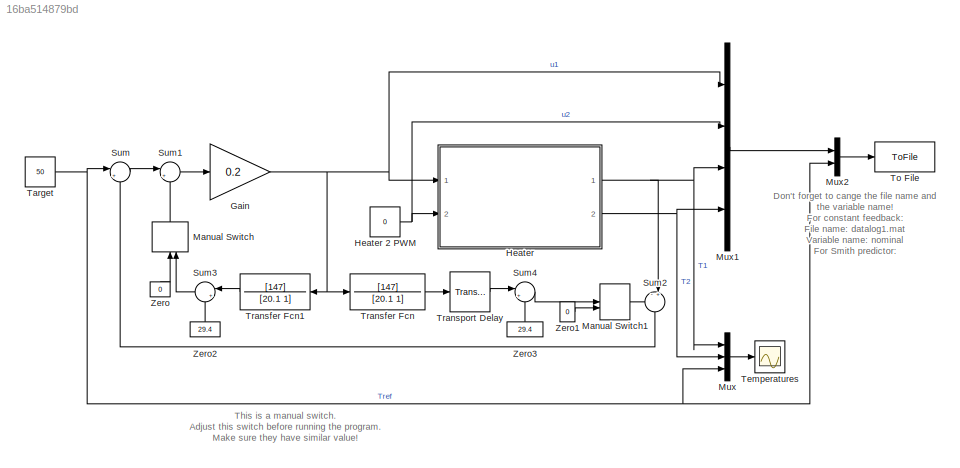
MODEL slx_16ba514879bd
KIND model
CONFIG AbsTol = auto
CONFIG EnableMultiTasking = on
CONFIG FixedStep = 1e-3
CONFIG MaxStep = auto
CONFIG MinStep = auto
CONFIG RelTol = 1e-3
CONFIG SampleTimeConstraint = Unconstrained
CONFIG SolverName = ode2
CONFIG StartTime = 0.0
CONFIG StopTime = inf
BLOCK [Gain] Gain
  Gain = 0.2
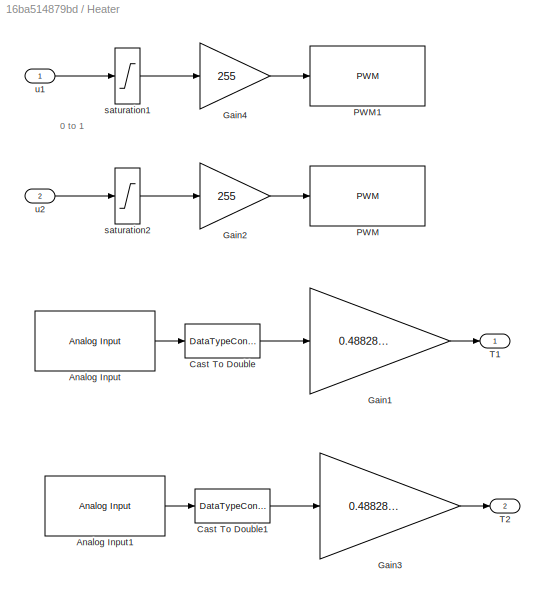
BLOCK [SubSystem] Heater
  Ports = [2, 2]
  RequestExecContextInheritance = off
BLOCK [Constant] Heater 2 PWM
  Value = 0
BLOCK [Reference] Heater/Analog Input  REF=arduinolib/Analog Input
  Ports = [0, 1]
  SourceBlock = arduinolib/Analog Input
  SourceProductBaseCode = ARDUINO
  SourceType = Arduino Analog Input
BLOCK [Reference] Heater/Analog Input1  REF=arduinolib/Analog Input
  Ports = [0, 1]
  SourceBlock = arduinolib/Analog Input
  SourceProductBaseCode = ARDUINO
  SourceType = Arduino Analog Input
BLOCK [DataTypeConversion] Heater/Cast To Double
  OutDataTypeStr = double
  RndMeth = Floor
  SaturateOnIntegerOverflow = off
BLOCK [DataTypeConversion] Heater/Cast To Double1
  OutDataTypeStr = double
  RndMeth = Floor
  SaturateOnIntegerOverflow = off
BLOCK [Gain] Heater/Gain1
  Gain = 0.48828125
BLOCK [Gain] Heater/Gain2
  Gain = 255
BLOCK [Gain] Heater/Gain3
  Gain = 0.48828125
BLOCK [Gain] Heater/Gain4
  Gain = 255
BLOCK [Reference] Heater/PWM  REF=arduinolib/PWM
  Ports = [1]
  SourceBlock = arduinolib/PWM
  SourceProductBaseCode = ARDUINO
  SourceType = Arduino PWM
BLOCK [Reference] Heater/PWM1  REF=arduinolib/PWM
  Ports = [1]
  SourceBlock = arduinolib/PWM
  SourceProductBaseCode = ARDUINO
  SourceType = Arduino PWM
BLOCK [Outport] Heater/T1
  VectorParamsAs1DForOutWhenUnconnected = off
BLOCK [Outport] Heater/T2
  Port = 2
  VectorParamsAs1DForOutWhenUnconnected = off
BLOCK [Saturate] Heater/saturation1
  LowerLimit = 0
  UpperLimit = 1
BLOCK [Saturate] Heater/saturation2
  LowerLimit = 0
  UpperLimit = 1
BLOCK [Inport] Heater/u1
BLOCK [Inport] Heater/u2
  Port = 2
BLOCK [ManualSwitch] Manual Switch
  CurrentSetting = 0
  NameLocation = right
BLOCK [ManualSwitch] Manual Switch1
BLOCK [Mux] Mux
  DisplayOption = bar
  Inputs = 3
  Ports = [3, 1]
BLOCK [Mux] Mux1
  DisplayOption = bar
  Ports = [4, 1]
BLOCK [Mux] Mux2
  DisplayOption = bar
  Inputs = 2
  Ports = [2, 1]
BLOCK [Sum] Sum
  Inputs = |+-
  Ports = [2, 1]
BLOCK [Sum] Sum1
  Inputs = |+-
  Ports = [2, 1]
BLOCK [Sum] Sum2
  Inputs = -+|
  NameLocation = left
  Ports = [2, 1]
BLOCK [Sum] Sum3
  Inputs = |++
  NameLocation = top
  Ports = [2, 1]
BLOCK [Sum] Sum4
  Inputs = |++
  Ports = [2, 1]
BLOCK [Constant] Target
  Value = 50
BLOCK [Scope] Temperatures
  Floating = off
  NumInputPorts = 1
  Ports = [1]
  ScopeSpecificationString = Simulink.scopes.TimeScopeBlockCfg('CurrentConfiguration', extmgr.ConfigurationSet(extmgr.Configuration('Core','General UI',true),extmgr.Configuration('Core','Source UI',true),extmgr.Configuration('Sources','WiredSimulink',true),extmgr.Configuration('Visuals','Time Domain',true,'SerializedDisplays',{struct('MinYLimReal','24.90234','MaxYLimReal','59.08203','YLabelReal','','MinYLimMag','24.90234','Ma...<+1439ch>
BLOCK [ToFile] To File
  Filename = datalog2.mat
  MatrixName = smith
  Ports = [1]
BLOCK [TransferFcn] Transfer Fcn
  Denominator = [20.1 1]
  Numerator = [147]
BLOCK [TransferFcn] Transfer Fcn1
  Denominator = [20.1 1]
  NameLocation = top
  Numerator = [147]
BLOCK [TransportDelay] Transport Delay
  DelayTime = 7
  Ports = [1, 1]
BLOCK [Constant] Zero
  NameLocation = right
  OutDataTypeStr = Inherit: Inherit via back propagation
  Value = 0
BLOCK [Constant] Zero1
  OutDataTypeStr = Inherit: Inherit via back propagation
  Value = 0
BLOCK [Constant] Zero2
  NameLocation = right
  OutDataTypeStr = Inherit: Inherit via back propagation
  Value = 29.4
BLOCK [Constant] Zero3
  NameLocation = right
  OutDataTypeStr = Inherit: Inherit via back propagation
  Value = 29.4
ANNOTATION (root): Don't forget to cange the file name and the variable name! For constant feedback: File name: datalog1.mat Variable name: nominal For Smith predictor: File name: datalog2.mat Variable name: smith
ANNOTATION (root): This is a manual switch. Adjust this switch before running the program. Make sure they have similar value!
ANNOTATION Heater: 0 to 1
NET Gain:1 -> Heater:1, Mux1:1, Transfer Fcn1:1, Transfer Fcn:1
NET Heater 2 PWM:1 -> Heater:2, Mux1:2
LINE Heater/Analog Input1:1 -> Heater/Cast To Double1:1
LINE Heater/Analog Input:1 -> Heater/Cast To Double:1
LINE Heater/Cast To Double1:1 -> Heater/Gain3:1
LINE Heater/Cast To Double:1 -> Heater/Gain1:1
LINE Heater/Gain1:1 -> Heater/T1:1
LINE Heater/Gain2:1 -> Heater/PWM:1
LINE Heater/Gain3:1 -> Heater/T2:1
LINE Heater/Gain4:1 -> Heater/PWM1:1
LINE Heater/saturation1:1 -> Heater/Gain4:1
LINE Heater/saturation2:1 -> Heater/Gain2:1
LINE Heater/u1:1 -> Heater/saturation1:1
LINE Heater/u2:1 -> Heater/saturation2:1
NET Heater:1 -> Mux1:3, Mux:1, Sum2:2
NET Heater:2 -> Mux1:4, Mux:2
LINE Manual Switch1:1 -> Sum2:1
LINE Manual Switch:1 -> Sum1:2
LINE Mux1:1 -> Mux2:1
LINE Mux2:1 -> To File:1
LINE Mux:1 -> Temperatures:1
LINE Sum1:1 -> Gain:1
LINE Sum2:1 -> Sum:2
LINE Sum3:1 -> Manual Switch:2
LINE Sum4:1 -> Manual Switch1:1
LINE Sum:1 -> Sum1:1
NET Target:1 -> Mux2:2, Mux:3, Sum:1
LINE Transfer Fcn1:1 -> Sum3:1
LINE Transfer Fcn:1 -> Transport Delay:1
LINE Transport Delay:1 -> Sum4:1
LINE Zero1:1 -> Manual Switch1:2
LINE Zero2:1 -> Sum3:2
LINE Zero3:1 -> Sum4:2
LINE Zero:1 -> Manual Switch:1
note: NET lines group one-source signal fan-out (src -> all destinations, sorted); 1:1 wires keep LINE
